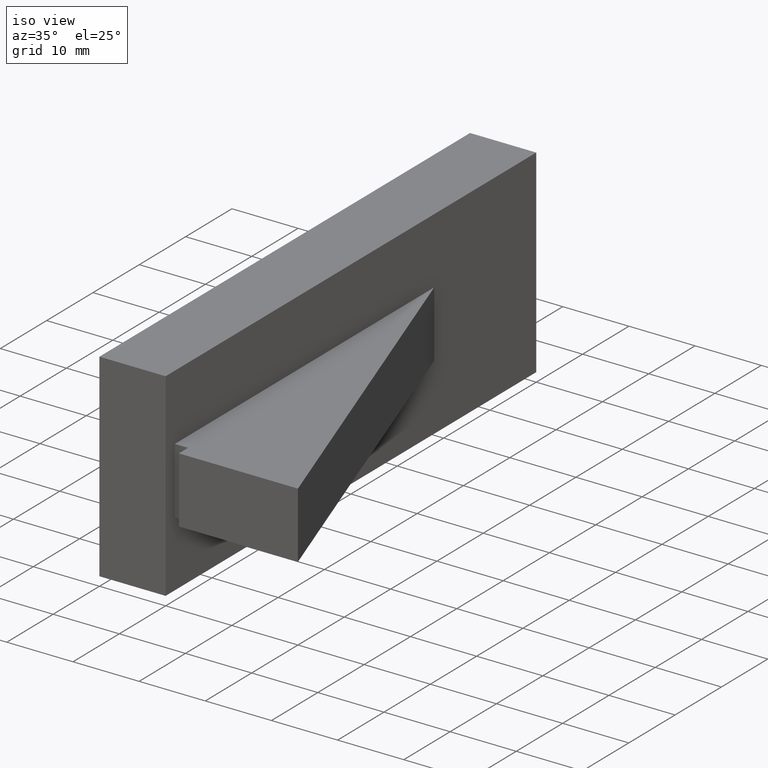
[diagram: clean part render]
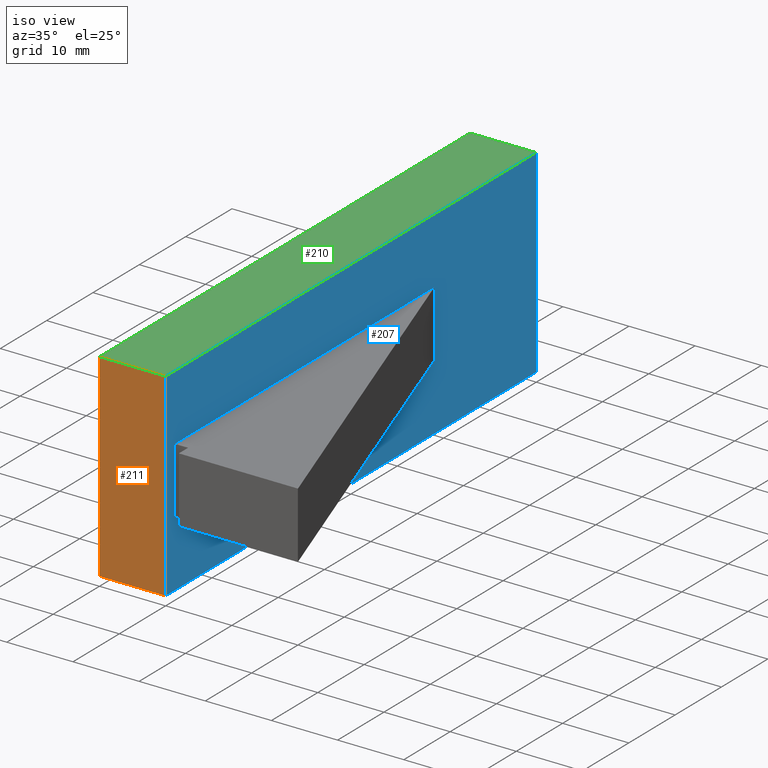
[diagram: same view with three faces highlighted in distinct colors, each labeled with its STEP entity id]
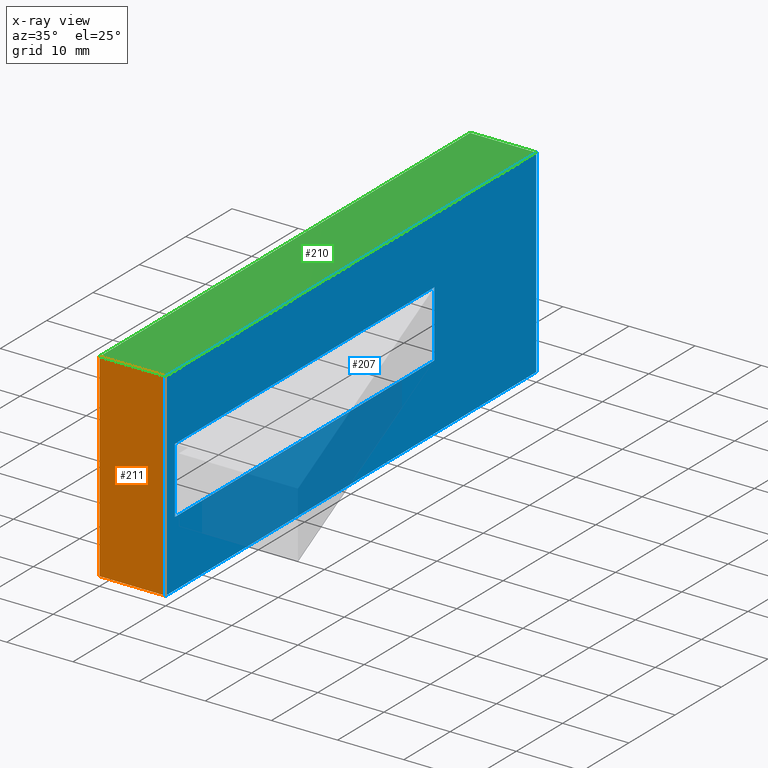
[diagram: x-ray of the same camera — body ghosted, the three highlighted faces saturated]
A machine part, iso view with three faces highlighted in distinct colors.
The next image is the same camera in x-ray (body ghosted, the three faces saturated) — at least one of them is partly hidden behind the body in this view.
Their STEP definitions:

[orange] entity #211 — the highlighted planar face has unit normal (0, -1, 0).
#21=FACE_OUTER_BOUND('',#34,.T.);
#34=EDGE_LOOP('',(#161,#162,#163,#164));
#42=LINE('',#311,#69);
#52=LINE('',#330,#79);
#56=LINE('',#338,#83);
#57=LINE('',#340,#84);
#69=VECTOR('',#258,10.);
#79=VECTOR('',#270,10.);
#83=VECTOR('',#278,10.);
#84=VECTOR('',#281,10.);
#96=VERTEX_POINT('',#309);
#97=VERTEX_POINT('',#310);
#104=VERTEX_POINT('',#326);
#107=VERTEX_POINT('',#336);
#114=EDGE_CURVE('',#96,#97,#42,.T.);
#124=EDGE_CURVE('',#96,#104,#52,.T.);
#128=EDGE_CURVE('',#97,#107,#56,.T.);
#129=EDGE_CURVE('',#107,#104,#57,.T.);
#161=ORIENTED_EDGE('',*,*,#129,.T.);
#162=ORIENTED_EDGE('',*,*,#124,.F.);
#163=ORIENTED_EDGE('',*,*,#114,.T.);
#164=ORIENTED_EDGE('',*,*,#128,.T.);
#199=PLANE('',#246);
#211=ADVANCED_FACE('',(#21),#199,.T.);
#246=AXIS2_PLACEMENT_3D('',#339,#279,#280);
#258=DIRECTION('',(0.,0.,1.));
#270=DIRECTION('',(-1.,-2.37904933848248E-16,0.));
#278=DIRECTION('',(-1.,-2.37904933848248E-16,0.));
#279=DIRECTION('center_axis',(2.37904933848248E-16,-1.,0.));
#280=DIRECTION('ref_axis',(0.,0.,-1.));
#281=DIRECTION('',(0.,0.,-1.));
#309=CARTESIAN_POINT('',(-20.,-2.77555756156289E-15,-15.));
#310=CARTESIAN_POINT('',(-20.,-2.77555756156289E-15,15.));
#311=CARTESIAN_POINT('',(-20.,-2.77555756156289E-15,-15.));
#326=CARTESIAN_POINT('',(-30.,-5.15460690004537E-15,-15.));
#330=CARTESIAN_POINT('',(-20.,-2.77555756156289E-15,-15.));
#336=CARTESIAN_POINT('',(-30.,-5.15460690004537E-15,15.));
#338=CARTESIAN_POINT('',(-20.,-2.77555756156289E-15,15.));
#339=CARTESIAN_POINT('Origin',(-20.,-2.77555756156289E-15,15.));
#340=CARTESIAN_POINT('',(-30.,-5.15460690004537E-15,-15.));

[blue] entity #207 — the highlighted planar face has unit normal (1, 0, -0).
#16=FACE_BOUND('',#30,.T.);
#17=FACE_OUTER_BOUND('',#29,.T.);
#29=EDGE_LOOP('',(#141,#142,#143,#144));
#30=EDGE_LOOP('',(#145,#146,#147,#148));
#42=LINE('',#311,#69);
#43=LINE('',#313,#70);
#44=LINE('',#315,#71);
#45=LINE('',#316,#72);
#46=LINE('',#319,#73);
#47=LINE('',#321,#74);
#48=LINE('',#323,#75);
#49=LINE('',#324,#76);
#69=VECTOR('',#258,10.);
#70=VECTOR('',#259,10.);
#71=VECTOR('',#260,10.);
#72=VECTOR('',#261,10.);
#73=VECTOR('',#262,10.);
#74=VECTOR('',#263,10.);
#75=VECTOR('',#264,10.);
#76=VECTOR('',#265,10.);
#96=VERTEX_POINT('',#309);
#97=VERTEX_POINT('',#310);
#98=VERTEX_POINT('',#312);
#99=VERTEX_POINT('',#314);
#100=VERTEX_POINT('',#317);
#101=VERTEX_POINT('',#318);
#102=VERTEX_POINT('',#320);
#103=VERTEX_POINT('',#322);
#114=EDGE_CURVE('',#96,#97,#42,.T.);
#115=EDGE_CURVE('',#98,#96,#43,.T.);
#116=EDGE_CURVE('',#99,#98,#44,.T.);
#117=EDGE_CURVE('',#97,#99,#45,.T.);
#118=EDGE_CURVE('',#100,#101,#46,.T.);
#119=EDGE_CURVE('',#102,#101,#47,.T.);
#120=EDGE_CURVE('',#102,#103,#48,.T.);
#121=EDGE_CURVE('',#103,#100,#49,.T.);
#141=ORIENTED_EDGE('',*,*,#114,.F.);
#142=ORIENTED_EDGE('',*,*,#115,.F.);
#143=ORIENTED_EDGE('',*,*,#116,.F.);
#144=ORIENTED_EDGE('',*,*,#117,.F.);
#145=ORIENTED_EDGE('',*,*,#118,.T.);
#146=ORIENTED_EDGE('',*,*,#119,.F.);
#147=ORIENTED_EDGE('',*,*,#120,.T.);
#148=ORIENTED_EDGE('',*,*,#121,.T.);
#195=PLANE('',#242);
#207=ADVANCED_FACE('',(#17,#16),#195,.T.);
#242=AXIS2_PLACEMENT_3D('',#308,#256,#257);
#256=DIRECTION('center_axis',(1.,2.48971655895418E-16,-1.10469952699022E-17));
#257=DIRECTION('ref_axis',(-1.10469952699022E-17,0.,-1.));
#258=DIRECTION('',(0.,0.,1.));
#259=DIRECTION('',(2.37904933848248E-16,-1.,2.77555756156289E-16));
#260=DIRECTION('',(1.40868018789466E-31,-5.9211894646675E-16,-1.));
#261=DIRECTION('',(-2.37904933848248E-16,1.,2.77555756156289E-16));
#262=DIRECTION('',(2.37904933848248E-16,-1.,0.));
#263=DIRECTION('',(0.,0.,-1.));
#264=DIRECTION('',(-2.37904933848248E-16,1.,0.));
#265=DIRECTION('',(0.,0.,-1.));
#308=CARTESIAN_POINT('Origin',(-20.,40.,2.22044604925031E-15));
#309=CARTESIAN_POINT('',(-20.,-2.77555756156289E-15,-15.));
#310=CARTESIAN_POINT('',(-20.,-2.77555756156289E-15,15.));
#311=CARTESIAN_POINT('',(-20.,-2.77555756156289E-15,-15.));
#312=CARTESIAN_POINT('',(-20.,80.,-15.));
#313=CARTESIAN_POINT('',(-20.,80.,-15.));
#314=CARTESIAN_POINT('',(-20.,80.,15.));
#315=CARTESIAN_POINT('',(-20.,80.,15.));
#316=CARTESIAN_POINT('',(-20.,-2.77555756156289E-15,15.));
#317=CARTESIAN_POINT('',(-20.,58.,-5.));
#318=CARTESIAN_POINT('',(-20.,2.,-5.));
#319=CARTESIAN_POINT('',(-20.,2.,-5.));
#320=CARTESIAN_POINT('',(-20.,2.,5.));
#321=CARTESIAN_POINT('',(-20.,2.,0.));
#322=CARTESIAN_POINT('',(-20.,58.,5.));
#323=CARTESIAN_POINT('',(-20.,2.,5.));
#324=CARTESIAN_POINT('',(-20.,58.,0.));

[green] entity #210 — the highlighted planar face has unit normal (0, -0, 1).
#20=FACE_OUTER_BOUND('',#33,.T.);
#33=EDGE_LOOP('',(#157,#158,#159,#160));
#45=LINE('',#316,#72);
#54=LINE('',#334,#81);
#55=LINE('',#337,#82);
#56=LINE('',#338,#83);
#72=VECTOR('',#261,10.);
#81=VECTOR('',#274,10.);
#82=VECTOR('',#277,10.);
#83=VECTOR('',#278,10.);
#97=VERTEX_POINT('',#310);
#99=VERTEX_POINT('',#314);
#106=VERTEX_POINT('',#332);
#107=VERTEX_POINT('',#336);
#117=EDGE_CURVE('',#97,#99,#45,.T.);
#126=EDGE_CURVE('',#99,#106,#54,.T.);
#127=EDGE_CURVE('',#106,#107,#55,.T.);
#128=EDGE_CURVE('',#97,#107,#56,.T.);
#157=ORIENTED_EDGE('',*,*,#127,.T.);
#158=ORIENTED_EDGE('',*,*,#128,.F.);
#159=ORIENTED_EDGE('',*,*,#117,.T.);
#160=ORIENTED_EDGE('',*,*,#126,.T.);
#198=PLANE('',#245);
#210=ADVANCED_FACE('',(#20),#198,.T.);
#245=AXIS2_PLACEMENT_3D('',#335,#275,#276);
#261=DIRECTION('',(-2.37904933848248E-16,1.,2.77555756156289E-16));
#274=DIRECTION('',(-1.,-2.37904933848248E-16,0.));
#275=DIRECTION('center_axis',(6.60318838075624E-32,-2.77555756156289E-16,
1.));
#276=DIRECTION('ref_axis',(1.,0.,-6.60318838075624E-32));
#277=DIRECTION('',(2.37904933848248E-16,-1.,-2.77555756156289E-16));
#278=DIRECTION('',(-1.,-2.37904933848248E-16,0.));
#310=CARTESIAN_POINT('',(-20.,-2.77555756156289E-15,15.));
#314=CARTESIAN_POINT('',(-20.,80.,15.));
#316=CARTESIAN_POINT('',(-20.,-2.77555756156289E-15,15.));
#332=CARTESIAN_POINT('',(-30.,80.,15.));
#334=CARTESIAN_POINT('',(-20.,80.,15.));
#335=CARTESIAN_POINT('Origin',(-20.,80.,15.));
#336=CARTESIAN_POINT('',(-30.,-5.15460690004537E-15,15.));
#337=CARTESIAN_POINT('',(-30.,-5.15460690004537E-15,15.));
#338=CARTESIAN_POINT('',(-20.,-2.77555756156289E-15,15.));